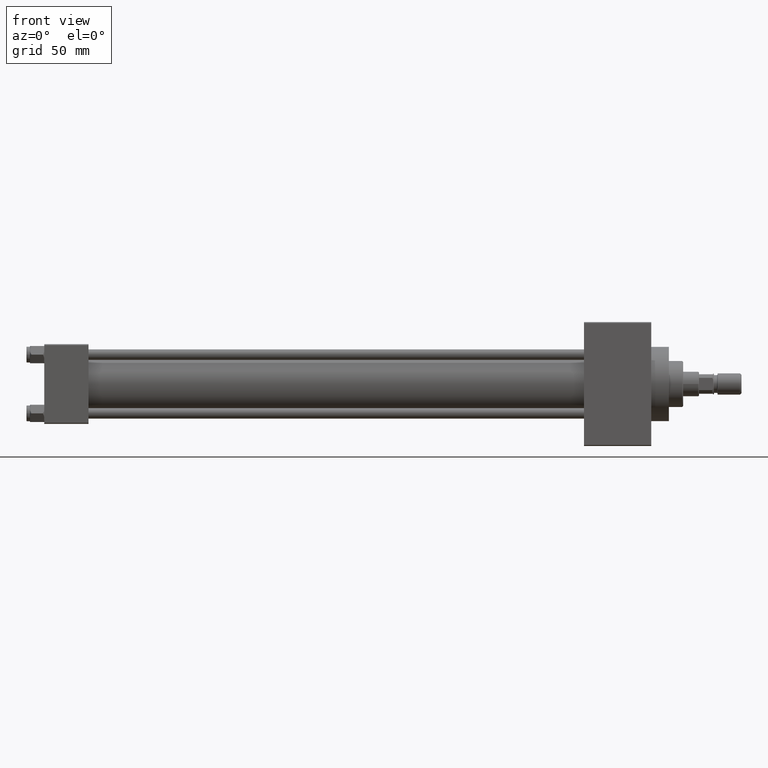
[diagram: clean part render]
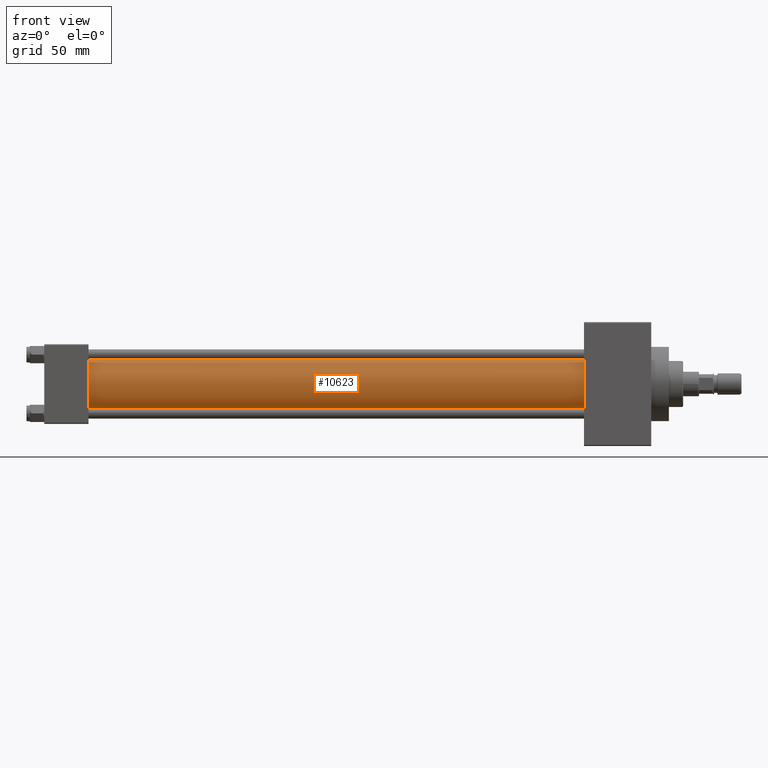
[diagram: same view with one face highlighted and labeled with its STEP entity id]
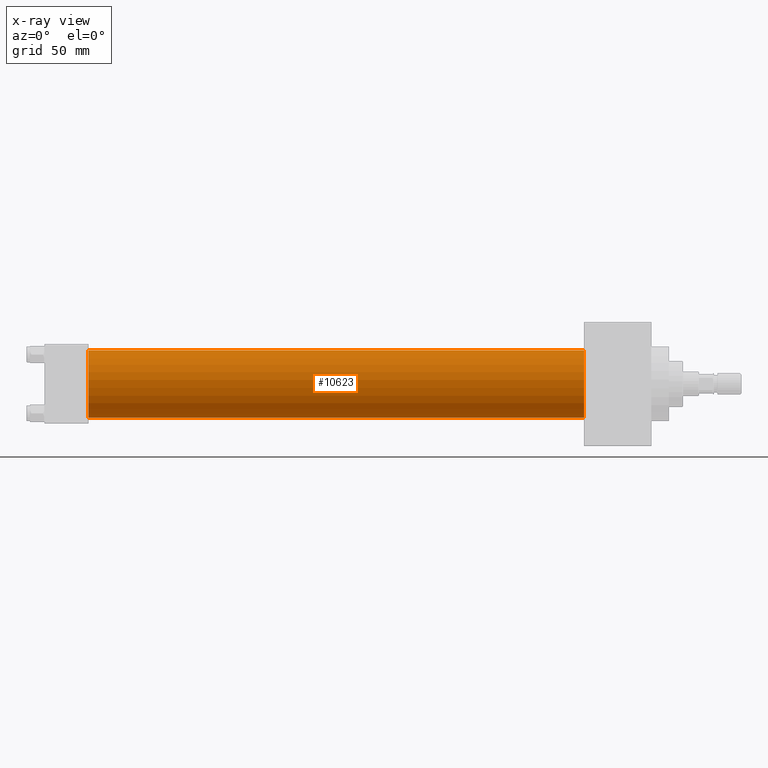
[diagram: x-ray of the same camera — body ghosted, the highlighted face saturated]
A machine part, front view. The second image highlights one B-rep face of the part: STEP entity #10623.
The next image is the same camera in x-ray: the body ghosted, the highlighted face saturated — about 0% of this face is hidden behind the body in this view.
In plain terms, the highlighted cylindrical surface (edge-blend (fillet) strip) has radius 19 mm, axis along (-1, -0, -0).
Its self-contained STEP definition (entity closure, byte-faithful):
#1766 = EDGE_CURVE ( 'NONE', #4863, #39573, #29245, .T. ) ;
#2552 = DIRECTION ( 'NONE',  ( -1.000000000000000000, -0.000000000000000000, -0.000000000000000000 ) ) ;
#2924 = VERTEX_POINT ( 'NONE', #5895 ) ;
#4863 = VERTEX_POINT ( 'NONE', #34921 ) ;
#5157 = ORIENTED_EDGE ( 'NONE', *, *, #48335, .T. ) ;
#5256 = DIRECTION ( 'NONE',  ( 0.000000000000000000, 0.000000000000000000, 1.000000000000000000 ) ) ;
#5895 = CARTESIAN_POINT ( 'NONE',  ( 305.0000000000000568, -2.752562955852396712E-16, -19.00000000000000000 ) ) ;
#5901 = LINE ( 'NONE', #47021, #20800 ) ;
#5997 = CARTESIAN_POINT ( 'NONE',  ( 25.00000000000002132, -2.602085213965210642E-15, 0.000000000000000000 ) ) ;
#6024 = AXIS2_PLACEMENT_3D ( 'NONE', #36869, #2552, #33586 ) ;
#6846 = CARTESIAN_POINT ( 'NONE',  ( 305.0000000000000568, -2.602085213965210642E-15, 19.00000000000000000 ) ) ;
#7352 = ORIENTED_EDGE ( 'NONE', *, *, #10389, .F. ) ;
#9265 = DIRECTION ( 'NONE',  ( 1.000000000000000000, -0.000000000000000000, 0.000000000000000000 ) ) ;
#9729 = ORIENTED_EDGE ( 'NONE', *, *, #19726, .F. ) ;
#10389 = EDGE_CURVE ( 'NONE', #32601, #2924, #33170, .T. ) ;
#10623 = ADVANCED_FACE ( 'NONE', ( #18298 ), #11044, .T. ) ;
#11044 = CYLINDRICAL_SURFACE ( 'NONE', #6024, 19.00000000000000000 ) ;
#14197 = VECTOR ( 'NONE', #35587, 1000.000000000000000 ) ;
#14674 = CARTESIAN_POINT ( 'NONE',  ( 305.0000000000000568, -2.602085213965210642E-15, 0.000000000000000000 ) ) ;
#15835 = DIRECTION ( 'NONE',  ( 1.000000000000000000, 0.000000000000000000, 0.000000000000000000 ) ) ;
#18298 = FACE_OUTER_BOUND ( 'NONE', #23010, .T. ) ;
#19726 = EDGE_CURVE ( 'NONE', #2924, #39573, #46640, .T. ) ;
#20800 = VECTOR ( 'NONE', #27687, 1000.000000000000000 ) ;
#23010 = EDGE_LOOP ( 'NONE', ( #9729, #7352, #5157, #39366 ) ) ;
#27599 = AXIS2_PLACEMENT_3D ( 'NONE', #14674, #15835, #49283 ) ;
#27687 = DIRECTION ( 'NONE',  ( -1.000000000000000000, -0.000000000000000000, -0.000000000000000000 ) ) ;
#29245 = CIRCLE ( 'NONE', #42094, 19.00000000000000000 ) ;
#32291 = CARTESIAN_POINT ( 'NONE',  ( 305.0000000000000568, -2.752562955852396712E-16, -19.00000000000000000 ) ) ;
#32601 = VERTEX_POINT ( 'NONE', #6846 ) ;
#33170 = CIRCLE ( 'NONE', #27599, 19.00000000000000000 ) ;
#33586 = DIRECTION ( 'NONE',  ( 0.000000000000000000, 0.000000000000000000, 1.000000000000000000 ) ) ;
#34921 = CARTESIAN_POINT ( 'NONE',  ( 25.00000000000002132, -2.602085213965210642E-15, 19.00000000000000000 ) ) ;
#35587 = DIRECTION ( 'NONE',  ( -1.000000000000000000, -0.000000000000000000, -0.000000000000000000 ) ) ;
#36869 = CARTESIAN_POINT ( 'NONE',  ( 305.0000000000000568, -2.602085213965210642E-15, 0.000000000000000000 ) ) ;
#39366 = ORIENTED_EDGE ( 'NONE', *, *, #1766, .T. ) ;
#39573 = VERTEX_POINT ( 'NONE', #43902 ) ;
#42094 = AXIS2_PLACEMENT_3D ( 'NONE', #5997, #9265, #5256 ) ;
#43902 = CARTESIAN_POINT ( 'NONE',  ( 25.00000000000002132, -2.752562955852396712E-16, -19.00000000000000000 ) ) ;
#46640 = LINE ( 'NONE', #32291, #14197 ) ;
#47021 = CARTESIAN_POINT ( 'NONE',  ( 305.0000000000000568, -2.602085213965210642E-15, 19.00000000000000000 ) ) ;
#48335 = EDGE_CURVE ( 'NONE', #32601, #4863, #5901, .T. ) ;
#49283 = DIRECTION ( 'NONE',  ( 0.000000000000000000, 0.000000000000000000, -1.000000000000000000 ) ) ;